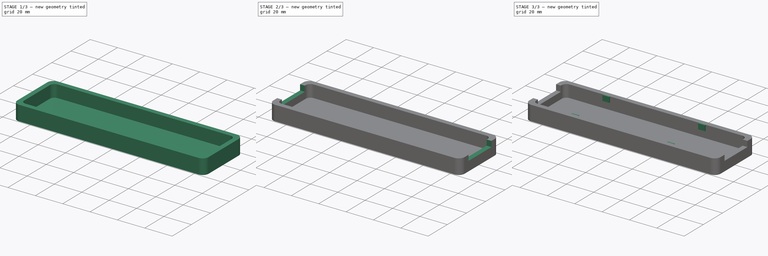
[diagram: build sequence overview — one tinted view per stage of 3, left to right]
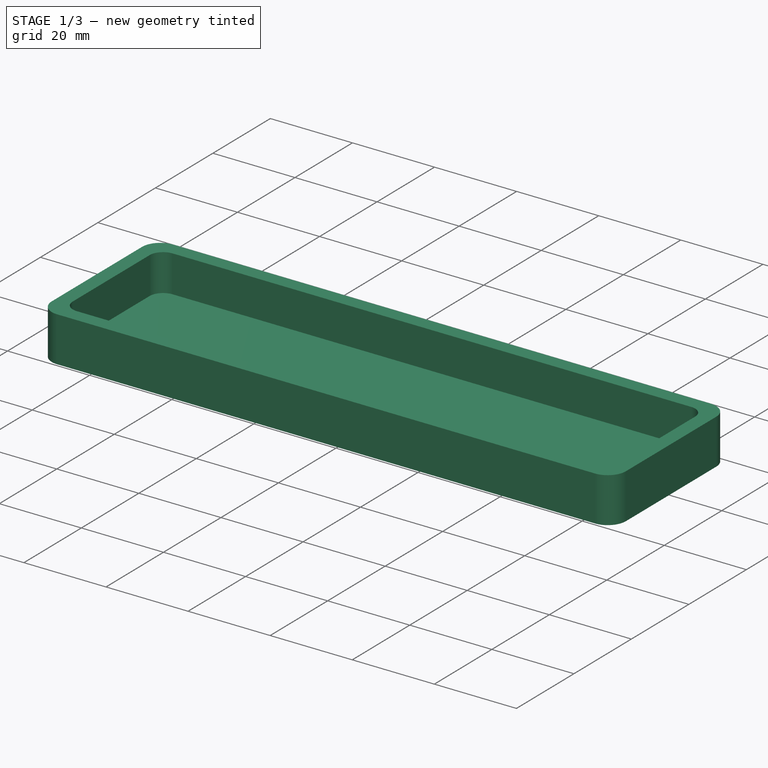
[diagram: stage 1 of 3 — iso view after this stage's code; geometry added in this stage tinted green]
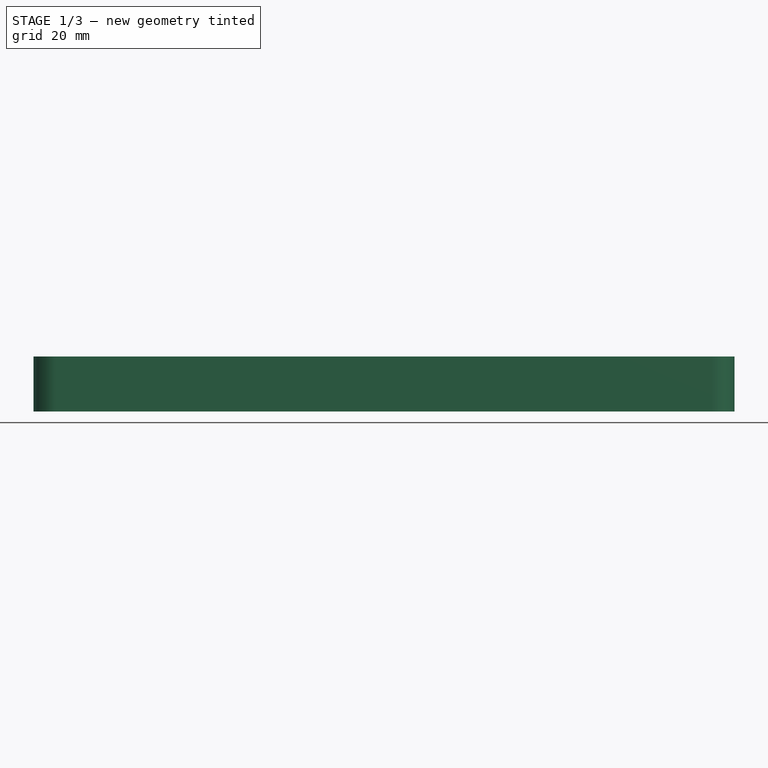
[diagram: stage 1 of 3 — front view after this stage's code; geometry added in this stage tinted green]
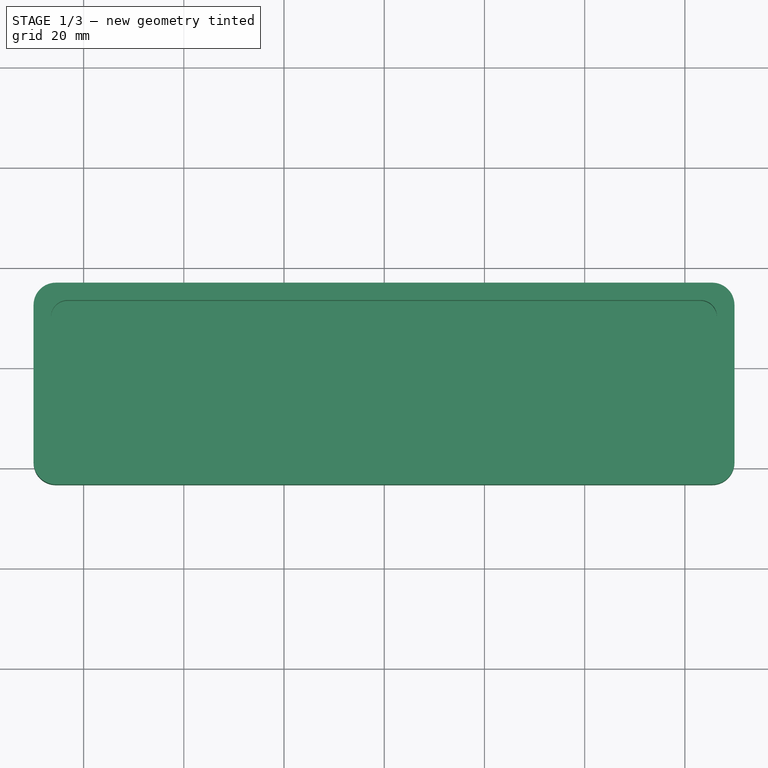
[diagram: stage 1 of 3 — top view after this stage's code; geometry added in this stage tinted green]
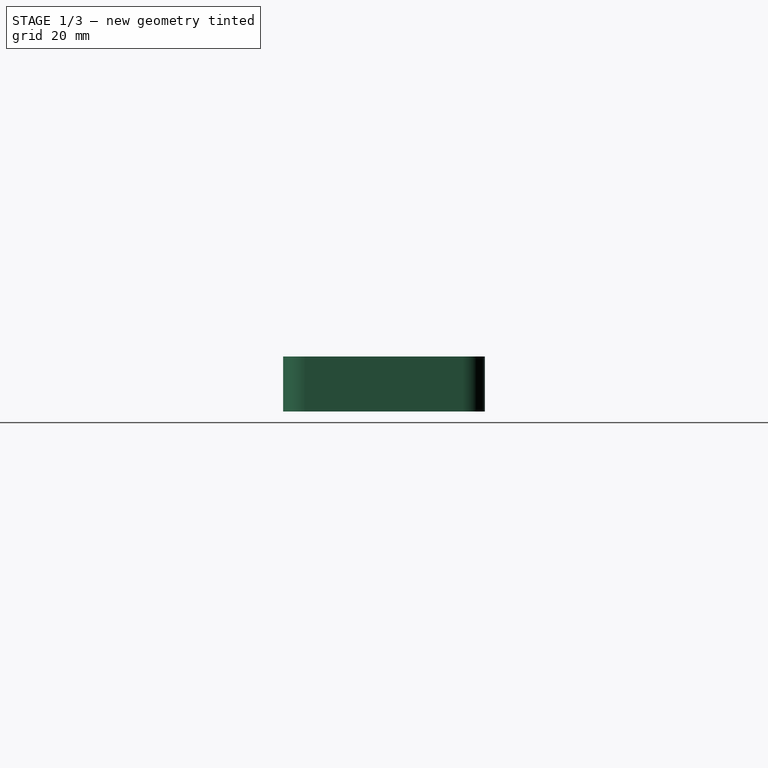
[diagram: stage 1 of 3 — right view after this stage's code; geometry added in this stage tinted green]
FCSTD DOCUMENT  (FreeCAD 1.0R38641 +678 (Git))
Label: Alinco DR-620 Mounting Plate
License: All rights reserved
LicenseURL: https://en.wikipedia.org/wiki/All_rights_reserved
objects: Sketcher::SketchObject×5, PartDesign::Pad×4, PartDesign::Pocket×1, PartDesign::Body×1
note: 26 computed .brp shape members not serialized (recipe doc carries the construction recipe); baked Part::Feature solids carry a one-line shape summary decoded from their .brp

FEATURE [Sketcher::SketchObject] Sketch
  ArcFitTolerance = 1e-06
  AttachmentSupport = -> [XY_Plane]
  FullyConstrained = true
  MakeInternals = false
  MapMode = 5
  sketch-geometry (20):
    g0: LineSegment StartX=65.4467 StartY=16.9374 StartZ=0 EndX=-65.5411 EndY=16.9374 EndZ=0
    g1: LineSegment StartX=-69.9861 StartY=12.4924 StartZ=0 EndX=-69.9861 EndY=-18.8766 EndZ=0
    g2: LineSegment StartX=-65.5411 StartY=-23.3216 StartZ=0 EndX=65.4467 EndY=-23.3216 EndZ=0
    g3: LineSegment StartX=69.8917 StartY=-18.8766 StartZ=0 EndX=69.8917 EndY=12.4924 EndZ=0
    g4: ArcOfCircle CenterX=65.4467 CenterY=12.4924 CenterZ=0 NormalX=0 NormalY=0 NormalZ=1 AngleXU=0 Radius=4.445 StartAngle=0 EndAngle=1.5708
    g5: ArcOfCircle CenterX=-65.5411 CenterY=12.4924 CenterZ=0 NormalX=0 NormalY=0 NormalZ=1 AngleXU=0 Radius=4.445 StartAngle=1.5708 EndAngle=3.14159
    g6: ArcOfCircle CenterX=-65.5411 CenterY=-18.8766 CenterZ=0 NormalX=0 NormalY=0 NormalZ=1 AngleXU=0 Radius=4.445 StartAngle=3.14159 EndAngle=4.71239
    g7: ArcOfCircle CenterX=65.4467 CenterY=-18.8766 CenterZ=0 NormalX=0 NormalY=0 NormalZ=1 AngleXU=0 Radius=4.445 StartAngle=4.71239 EndAngle=6.28319
    g8: GeomPoint [constr] X=69.8917 Y=16.9374 Z=0
    g9: GeomPoint [constr] X=-69.9861 Y=-23.3216 Z=0
    g10: LineSegment StartX=-66.5063 StartY=10.1556 StartZ=0 EndX=-66.5063 EndY=-16.5398 EndZ=0
    g11: LineSegment StartX=-63.2043 StartY=-19.8418 StartZ=0 EndX=63.1099 EndY=-19.8418 EndZ=0
    g12: LineSegment StartX=66.4119 StartY=-16.5398 StartZ=0 EndX=66.4119 EndY=10.1556 EndZ=0
    g13: LineSegment StartX=63.1099 StartY=13.4576 StartZ=0 EndX=-63.2043 EndY=13.4576 EndZ=0
    g14: ArcOfCircle CenterX=-63.2043 CenterY=10.1556 CenterZ=0 NormalX=0 NormalY=0 NormalZ=1 AngleXU=0 Radius=3.302 StartAngle=1.5708 EndAngle=3.14159
    g15: ArcOfCircle CenterX=-63.2043 CenterY=-16.5398 CenterZ=0 NormalX=0 NormalY=0 NormalZ=1 AngleXU=0 Radius=3.302 StartAngle=3.14159 EndAngle=4.71239
    g16: ArcOfCircle CenterX=63.1099 CenterY=-16.5398 CenterZ=0 NormalX=0 NormalY=0 NormalZ=1 AngleXU=0 Radius=3.302 StartAngle=4.71239 EndAngle=6.28319
    g17: ArcOfCircle CenterX=63.1099 CenterY=10.1556 CenterZ=0 NormalX=0 NormalY=0 NormalZ=1 AngleXU=0 Radius=3.302 StartAngle=2e-16 EndAngle=1.5708
    g18: GeomPoint [constr] X=-66.5063 Y=13.4576 Z=0
    g19: GeomPoint [constr] X=66.4119 Y=-19.8418 Z=0
  constraints (45):
    c: Tangent(g0,g4) = -1.5708
    c: Tangent(g0,g5) = -1.5708
    c: Tangent(g1,g5) = -1.5708
    c: Tangent(g1,g6) = -1.5708
    c: Tangent(g2,g6) = -1.5708
    c: Tangent(g2,g7) = -1.5708
    c: Tangent(g3,g7) = -1.5708
    c: Tangent(g3,g4) = -1.5708
    c: Horizontal(g2)
    c: Vertical(g1)
    c: Vertical(g3)
    c: Equal(g4,g5)
    c: Equal(g5,g6)
    c: Equal(g6,g7)
    c: PointOnObject(g8,g0)
    c: PointOnObject(g8,g3)
    c: PointOnObject(g9,g1)
    c: PointOnObject(g9,g2)
    c: Distance(g1,g3) = 139.878
    c: Distance(g2,g0) = 40.259
    c: Block(g0)
    c: Tangent(g10,g14) = -1.5708
    c: Tangent(g10,g15) = -1.5708
    c: Tangent(g11,g15) = -1.5708
    c: Tangent(g11,g16) = -1.5708
    c: Tangent(g12,g16) = -1.5708
    c: Tangent(g12,g17) = -1.5708
    c: Tangent(g13,g17) = -1.5708
    c: Tangent(g13,g14) = -1.5708
    c: Vertical(g10)
    c: Vertical(g12)
    c: Horizontal(g11)
    c: Horizontal(g13)
    c: Equal(g14,g15)
    c: Equal(g15,g16)
    c: Equal(g16,g17)
    c: PointOnObject(g18,g10)
    c: PointOnObject(g18,g13)
    c: PointOnObject(g19,g11)
    c: PointOnObject(g19,g12)
    c: Distance(g13,g0) = 3.4798
    c: Distance(g10,g1) = 3.4798
    c: Distance(g3,g12) = 3.4798
    c: Distance(g11,g2) = 3.4798
    c: DistanceX(g10,g11) = 3.302
FEATURE [PartDesign::Pad] Pad  label="Side Wall"
  Direction = (0,0,1)
  Length = 15
  Length2 = 10
  Profile = -> Sketch
  ReferenceAxis = -> Sketch [N_Axis]
  Refine = true
  Suppressed = false
  Type = 0
FEATURE [Sketcher::SketchObject] Sketch001
  ArcFitTolerance = 1e-06
  AttachmentSupport = -> [XY_Plane]
  FullyConstrained = true
  MakeInternals = false
  MapMode = 5
  sketch-geometry (10):
    g0: LineSegment StartX=65.4467 StartY=16.9374 StartZ=0 EndX=-65.5411 EndY=16.9374 EndZ=0
    g1: LineSegment StartX=-69.9861 StartY=12.4924 StartZ=0 EndX=-69.9861 EndY=-18.8766 EndZ=0
    g2: LineSegment StartX=-65.5411 StartY=-23.3216 StartZ=0 EndX=65.4467 EndY=-23.3216 EndZ=0
    g3: LineSegment StartX=69.8917 StartY=-18.8766 StartZ=0 EndX=69.8917 EndY=12.4924 EndZ=0
    g4: ArcOfCircle CenterX=65.4467 CenterY=12.4924 CenterZ=0 NormalX=0 NormalY=0 NormalZ=1 AngleXU=0 Radius=4.445 StartAngle=0 EndAngle=1.5708
    g5: ArcOfCircle CenterX=-65.5411 CenterY=12.4924 CenterZ=0 NormalX=0 NormalY=0 NormalZ=1 AngleXU=0 Radius=4.445 StartAngle=1.5708 EndAngle=3.14159
    g6: ArcOfCircle CenterX=-65.5411 CenterY=-18.8766 CenterZ=0 NormalX=0 NormalY=0 NormalZ=1 AngleXU=0 Radius=4.445 StartAngle=3.14159 EndAngle=4.71239
    g7: ArcOfCircle CenterX=65.4467 CenterY=-18.8766 CenterZ=0 NormalX=0 NormalY=0 NormalZ=1 AngleXU=0 Radius=4.445 StartAngle=4.71239 EndAngle=6.28319
    g8: GeomPoint [constr] X=69.8917 Y=16.9374 Z=0
    g9: GeomPoint [constr] X=-69.9861 Y=-23.3216 Z=0
  constraints (21):
    c: Tangent(g0,g4) = -1.5708
    c: Tangent(g0,g5) = -1.5708
    c: Tangent(g1,g5) = -1.5708
    c: Tangent(g1,g6) = -1.5708
    c: Tangent(g2,g6) = -1.5708
    c: Tangent(g2,g7) = -1.5708
    c: Tangent(g3,g7) = -1.5708
    c: Tangent(g3,g4) = -1.5708
    c: Horizontal(g2)
    c: Vertical(g1)
    c: Vertical(g3)
    c: Equal(g4,g5)
    c: Equal(g5,g6)
    c: Equal(g6,g7)
    c: PointOnObject(g8,g0)
    c: PointOnObject(g8,g3)
    c: PointOnObject(g9,g1)
    c: PointOnObject(g9,g2)
    c: Distance(g1,g3) = 139.878
    c: Distance(g2,g0) = 40.259
    c: Block(g0)
FEATURE [PartDesign::Pad] Pad001  label="Floor"
  BaseFeature = -> Pad
  Direction = (0,0,1)
  Length = 2
  Length2 = 10
  Profile = -> Sketch001
  ReferenceAxis = -> Sketch001 [N_Axis]
  Refine = true
  Suppressed = false
  Type = 0
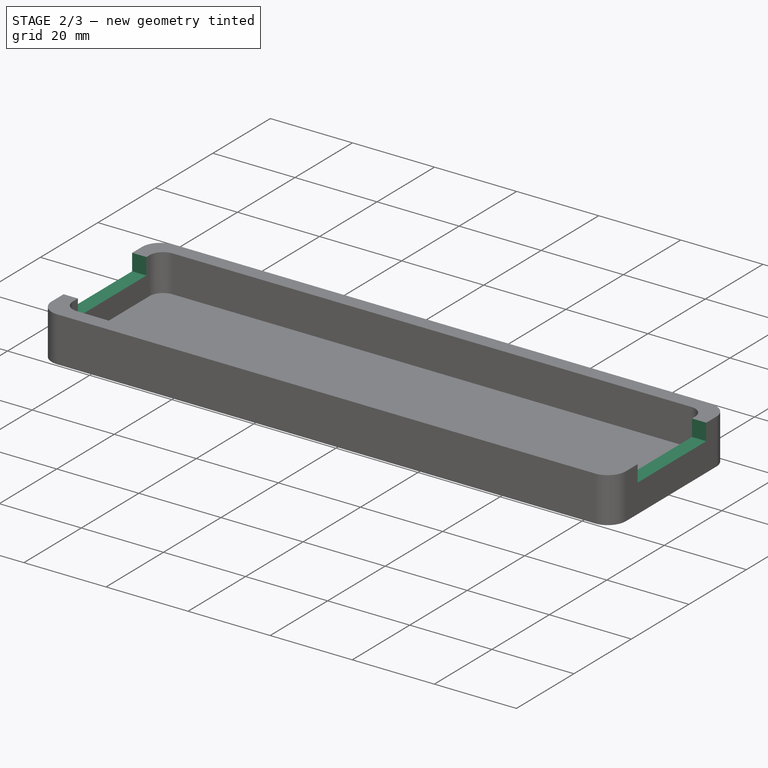
[diagram: stage 2 of 3 — iso view after this stage's code; geometry added in this stage tinted green]
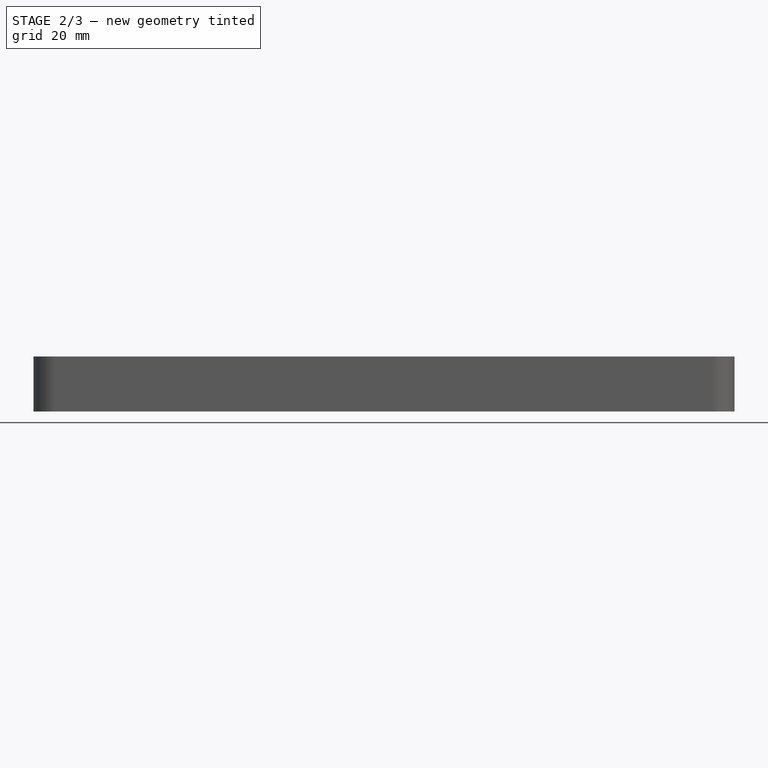
[diagram: stage 2 of 3 — front view after this stage's code; geometry added in this stage tinted green]
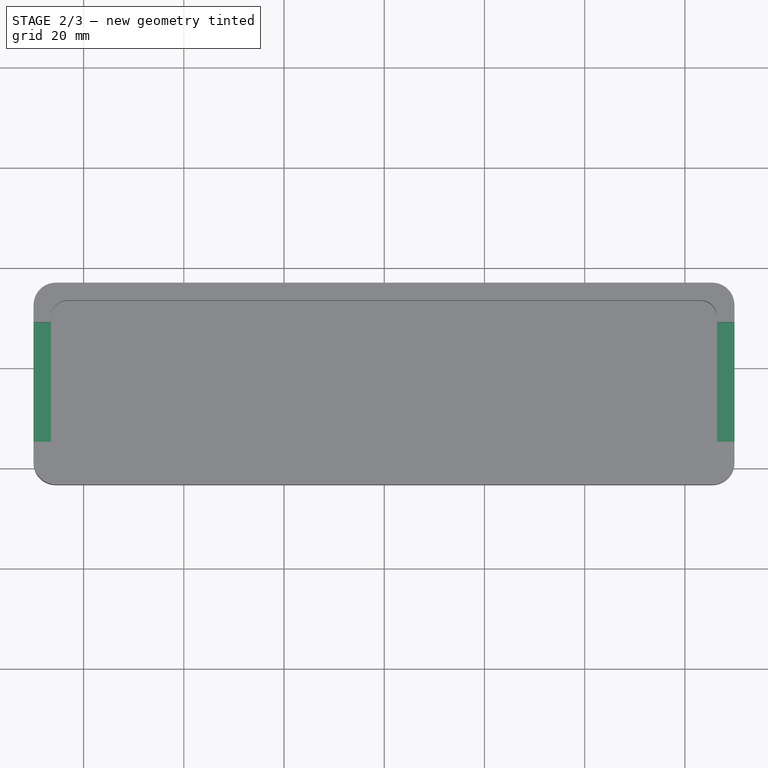
[diagram: stage 2 of 3 — top view after this stage's code; geometry added in this stage tinted green]
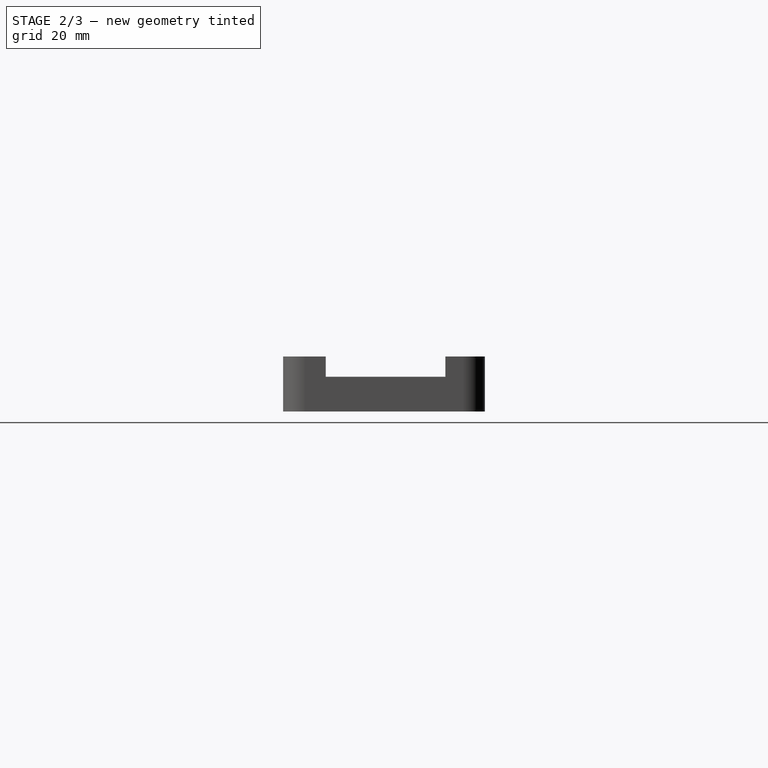
[diagram: stage 2 of 3 — right view after this stage's code; geometry added in this stage tinted green]
FEATURE [Sketcher::SketchObject] Sketch002
  ArcFitTolerance = 1e-06
  AttachmentSupport = -> [Pad001]
  ExternalGeometry = -> [Pad001]
  FullyConstrained = true
  MakeInternals = false
  MapMode = 5
  Placement = pos=(69.8917,0,0) rot=(0.57735,0.57735,0.57735;2.0944rad)
  sketch-geometry (4):
    g0: LineSegment StartX=-14.8126 StartY=11 StartZ=0 EndX=-14.8126 EndY=6.936 EndZ=0
    g1: LineSegment StartX=-14.8126 StartY=6.936 StartZ=0 EndX=9.06336 EndY=6.936 EndZ=0
    g2: LineSegment StartX=9.06336 StartY=6.936 StartZ=0 EndX=9.06336 EndY=11 EndZ=0
    g3: LineSegment StartX=9.06336 StartY=11 StartZ=0 EndX=-14.8126 EndY=11 EndZ=0
  constraints (12):
    c: Coincident(g0,g1)
    c: Coincident(g1,g2)
    c: Coincident(g2,g3)
    c: Coincident(g3,g0)
    c: Vertical(g0)
    c: Vertical(g2)
    c: Horizontal(g1)
    c: Horizontal(g3)
    c: DistanceY(g0,g-3) = 0
    c: DistanceX(g1,g1) = 23.876
    c: Distance(g0,g-3) = 4.064
    c: Distance(g0,g0) = 4.064
FEATURE [PartDesign::Pocket] Pocket  label="Latch Cutouts"
  BaseFeature = -> Pad001
  Direction = (-1,0,0)
  Length = 52
  Length2 = 5
  Profile = -> Sketch002
  ReferenceAxis = -> Sketch002 [N_Axis]
  Refine = true
  Suppressed = false
  Type = 1
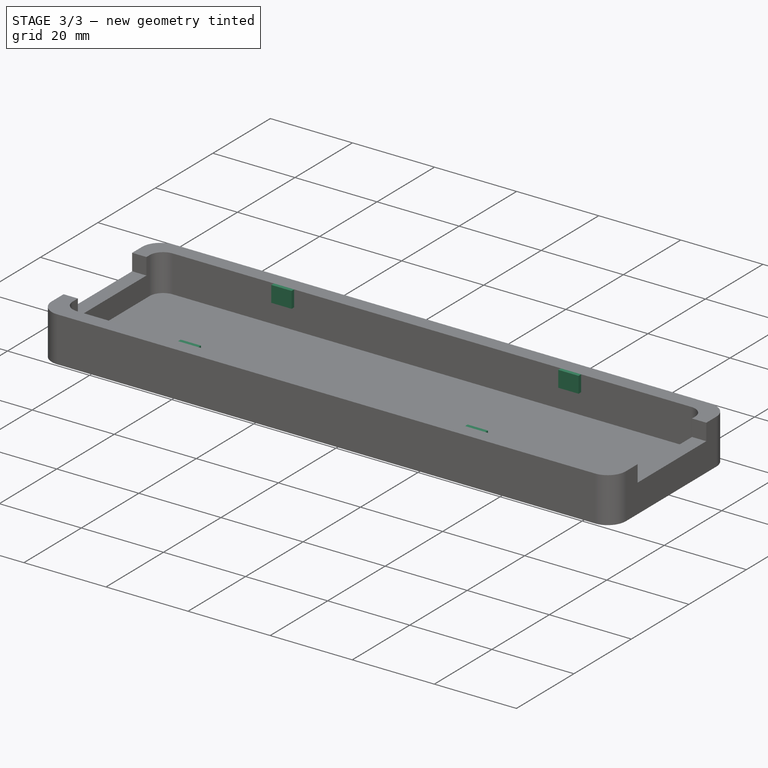
[diagram: stage 3 of 3 — iso view after this stage's code; geometry added in this stage tinted green]
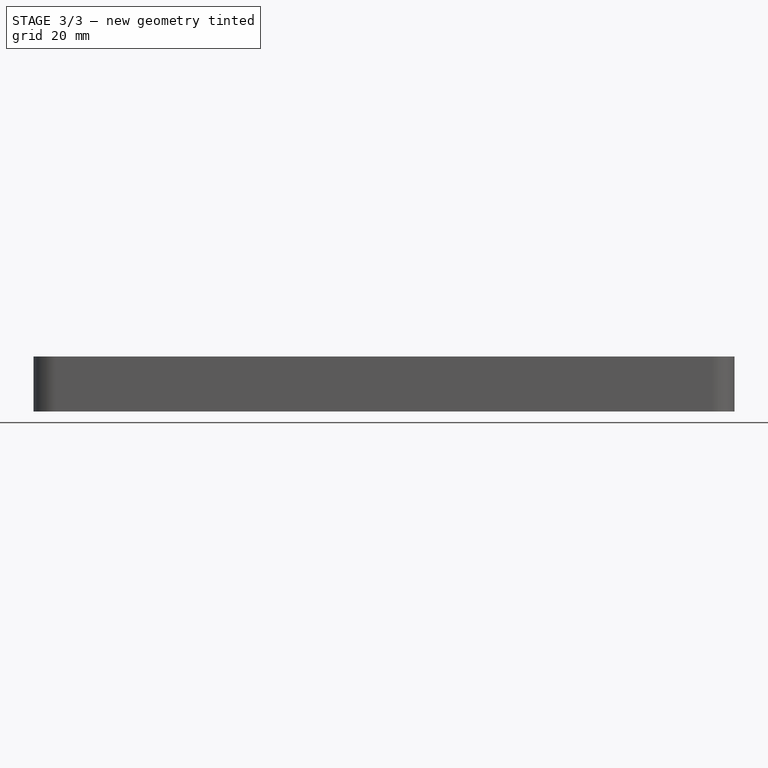
[diagram: stage 3 of 3 — front view after this stage's code; geometry added in this stage tinted green]
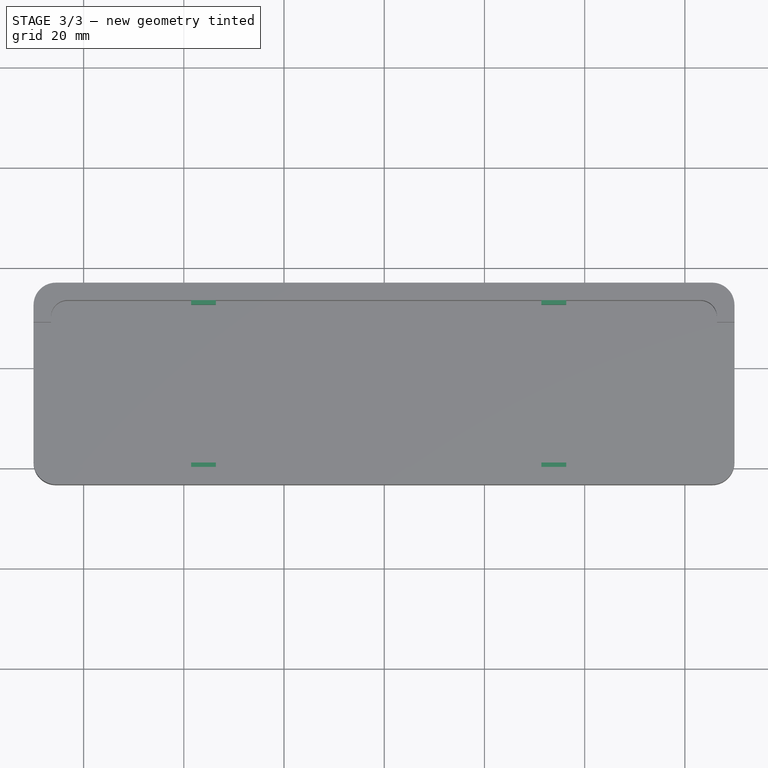
[diagram: stage 3 of 3 — top view after this stage's code; geometry added in this stage tinted green]
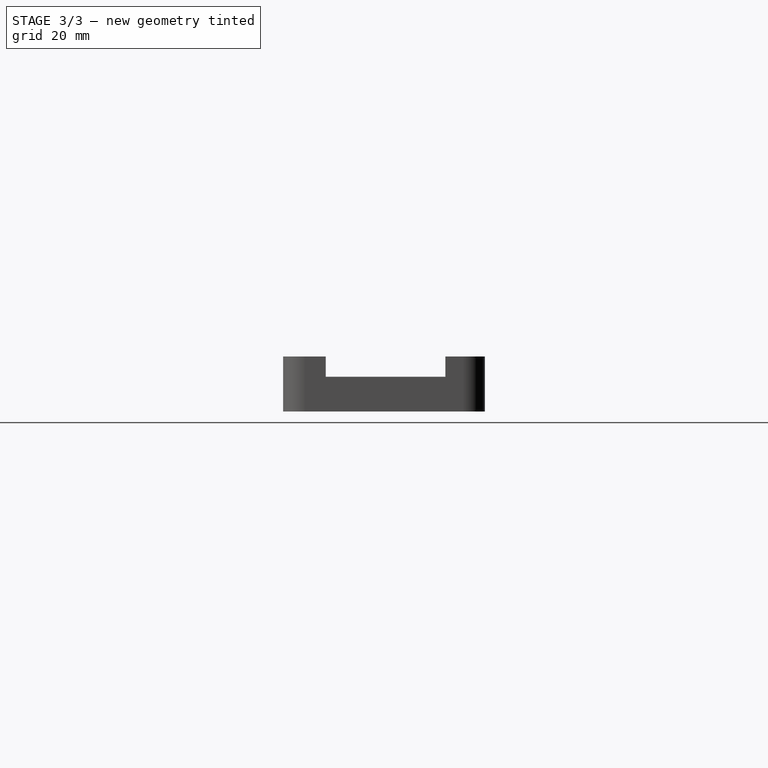
[diagram: stage 3 of 3 — right view after this stage's code; geometry added in this stage tinted green]
FEATURE [Sketcher::SketchObject] Sketch003
  ArcFitTolerance = 1e-06
  AttachmentSupport = -> [Pocket]
  ExternalGeometry = -> [Pocket]
  FullyConstrained = true
  MakeInternals = false
  MapMode = 5
  Placement = pos=(0,13.4576,0) rot=(1,0,0;1.5708rad)
  sketch-geometry (8):
    g0: LineSegment StartX=-38.5409 StartY=7.063 StartZ=0 EndX=-38.5409 EndY=11 EndZ=0
    g1: LineSegment StartX=-38.5409 StartY=11 StartZ=0 EndX=-33.5879 EndY=11 EndZ=0
    g2: LineSegment StartX=-33.5879 StartY=11 StartZ=0 EndX=-33.5879 EndY=7.063 EndZ=0
    g3: LineSegment StartX=-33.5879 StartY=7.063 StartZ=0 EndX=-38.5409 EndY=7.063 EndZ=0
    g4: LineSegment StartX=31.3599 StartY=11 StartZ=0 EndX=31.3599 EndY=7.063 EndZ=0
    g5: LineSegment StartX=31.3599 StartY=7.063 StartZ=0 EndX=36.3129 EndY=7.063 EndZ=0
    g6: LineSegment StartX=36.3129 StartY=7.063 StartZ=0 EndX=36.3129 EndY=11 EndZ=0
    g7: LineSegment StartX=36.3129 StartY=11 StartZ=0 EndX=31.3599 EndY=11 EndZ=0
  constraints (24):
    c: Coincident(g0,g1)
    c: Coincident(g1,g2)
    c: Coincident(g2,g3)
    c: Coincident(g3,g0)
    c: Vertical(g0)
    c: Vertical(g2)
    c: Horizontal(g1)
    c: Horizontal(g3)
    c: Coincident(g4,g5)
    c: Coincident(g5,g6)
    c: Coincident(g6,g7)
    c: Coincident(g7,g4)
    c: Vertical(g4)
    c: Vertical(g6)
    c: Horizontal(g5)
    c: Horizontal(g7)
    c: DistanceX(g-3,g0) = 27.0002
    c: Distance(g3,g3) = 4.953
    c: DistanceY(g0,g-3) = 3.937
    c: DistanceY(g-3,g0) = 0
    c: Equal(g4,g0)
    c: Equal(g7,g3)
    c: DistanceY(g4,g-3) = 0
    c: DistanceX(g-3,g4) = 96.901
FEATURE [PartDesign::Pad] Pad002  label="Upper Mounting Tabs"
  BaseFeature = -> Pocket
  Direction = (0,-1,2e-16)
  Length = 0.889
  Length2 = 10
  Profile = -> Sketch003
  ReferenceAxis = -> Sketch003 [N_Axis]
  Refine = true
  Suppressed = false
  Type = 0
  expr: Length = 0.175 in - 0.14 in
FEATURE [Sketcher::SketchObject] Sketch004
  ArcFitTolerance = 1e-06
  AttachmentSupport = -> [Pad002]
  ExternalGeometry = -> [Sketch003]
  FullyConstrained = true
  MakeInternals = false
  MapMode = 5
  Placement = pos=(0,-19.8418,0) rot=(0,0.707107,0.707107;3.14159rad)
  sketch-geometry (8):
    g0: LineSegment StartX=-36.3129 StartY=11 StartZ=0 EndX=-31.3599 EndY=11 EndZ=0
    g1: LineSegment StartX=-31.3599 StartY=11 StartZ=0 EndX=-31.3599 EndY=7.063 EndZ=0
    g2: LineSegment StartX=-31.3599 StartY=7.063 StartZ=0 EndX=-36.3129 EndY=7.063 EndZ=0
    g3: LineSegment StartX=-36.3129 StartY=7.063 StartZ=0 EndX=-36.3129 EndY=11 EndZ=0
    g4: LineSegment StartX=38.5409 StartY=11 StartZ=0 EndX=33.5879 EndY=11 EndZ=0
    g5: LineSegment StartX=33.5879 StartY=11 StartZ=0 EndX=33.5879 EndY=7.063 EndZ=0
    g6: LineSegment StartX=33.5879 StartY=7.063 StartZ=0 EndX=38.5409 EndY=7.063 EndZ=0
    g7: LineSegment StartX=38.5409 StartY=7.063 StartZ=0 EndX=38.5409 EndY=11 EndZ=0
  constraints (24):
    c: Coincident(g0,g1)
    c: Coincident(g1,g2)
    c: Coincident(g2,g3)
    c: Coincident(g3,g0)
    c: Horizontal(g0)
    c: Horizontal(g2)
    c: Vertical(g1)
    c: Vertical(g3)
    c: Coincident(g4,g5)
    c: Coincident(g5,g6)
    c: Coincident(g6,g7)
    c: Coincident(g7,g4)
    c: Horizontal(g4)
    c: Horizontal(g6)
    c: Vertical(g5)
    c: Vertical(g7)
    c: DistanceX(g0,g-9) = 0
    c: DistanceY(g-9,g0) = 0
    c: DistanceX(g-10,g1) = 0
    c: DistanceY(g1,g-10) = 0
    c: DistanceX(g4,g-5) = 0
    c: DistanceY(g-5,g4) = 0
    c: DistanceX(g-6,g6) = 0
    c: DistanceY(g6,g-6) = 0
FEATURE [PartDesign::Pad] Pad003  label="Lower Mounting Tabs"
  BaseFeature = -> Pad002
  Direction = (0,1,-2e-16)
  Length = 0.89
  Length2 = 10
  Profile = -> Sketch004
  ReferenceAxis = -> Sketch004 [N_Axis]
  Refine = true
  Suppressed = false
  Type = 0
FEATURE [PartDesign::Body] Body
  AllowCompound = false
  Group = -> [Sketch,Pad,Sketch001,Pad001,Sketch002,Pocket,Sketch003,Pad002,Sketch004,Pad003]
  Origin = -> Origin
  Tip = -> Pad003
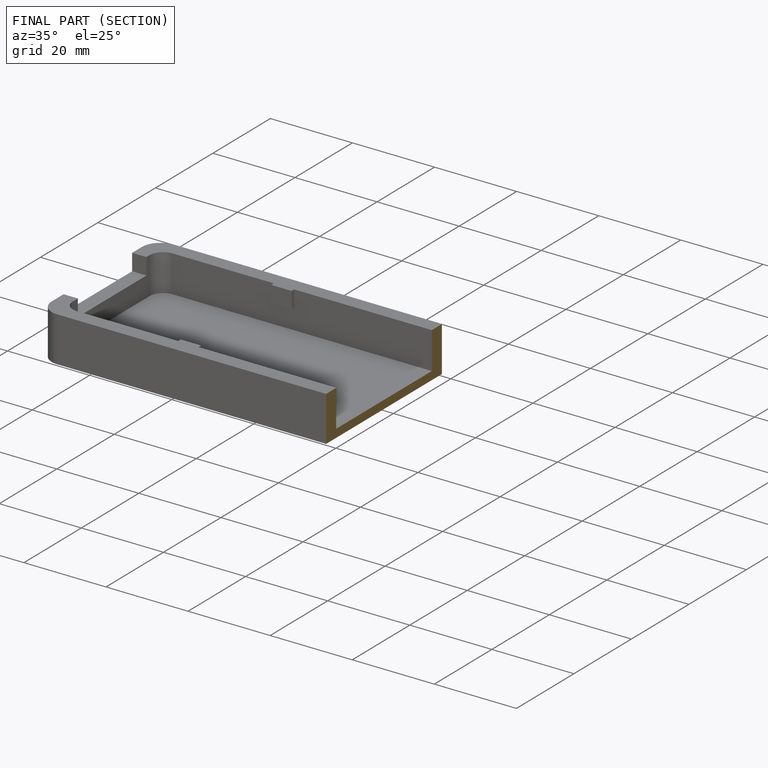
[diagram: finished part — half-section view (interior)]
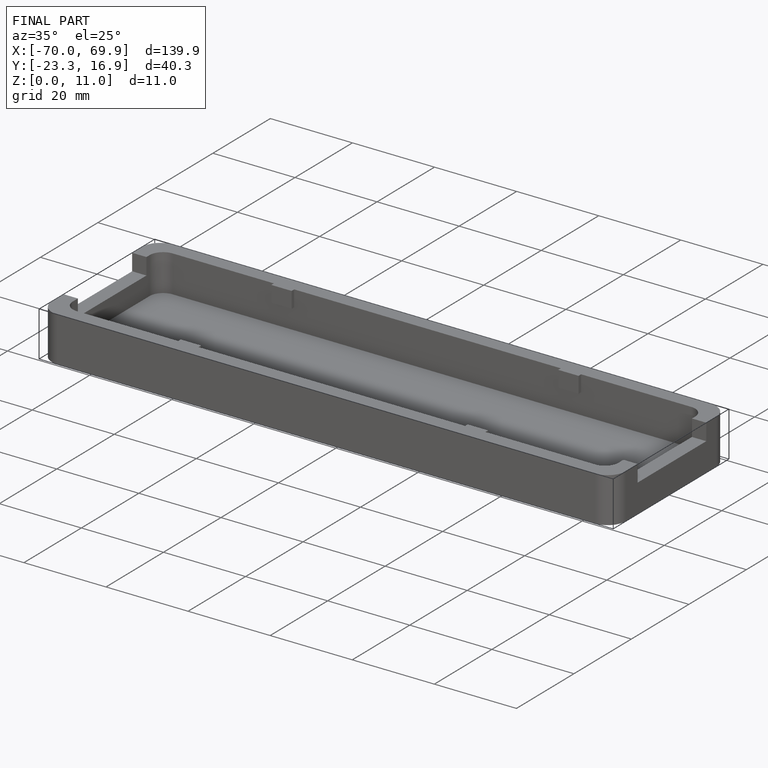
[diagram: finished part — iso view with bounding-box wireframe]
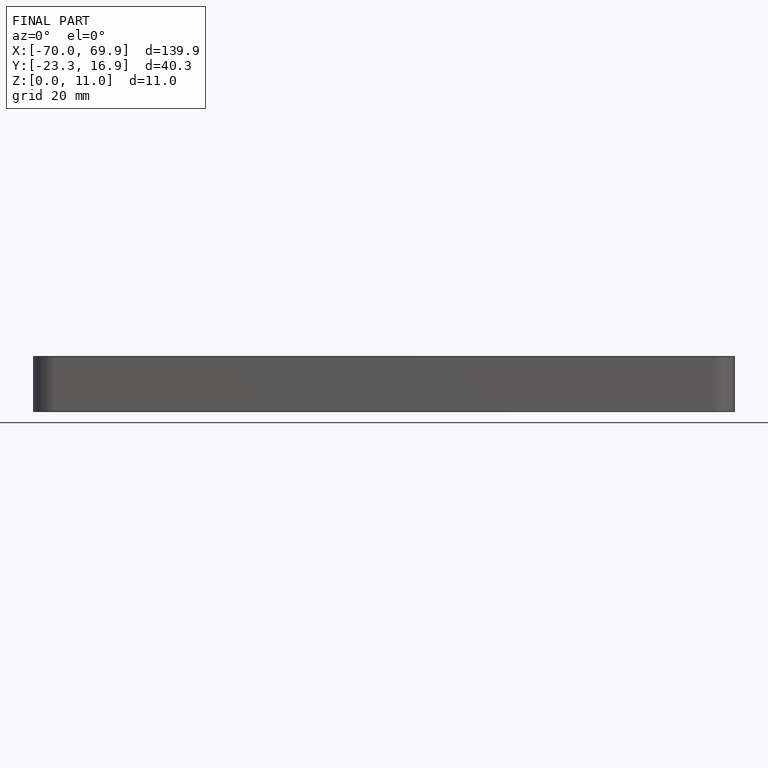
[diagram: finished part — front view with bounding-box wireframe]
